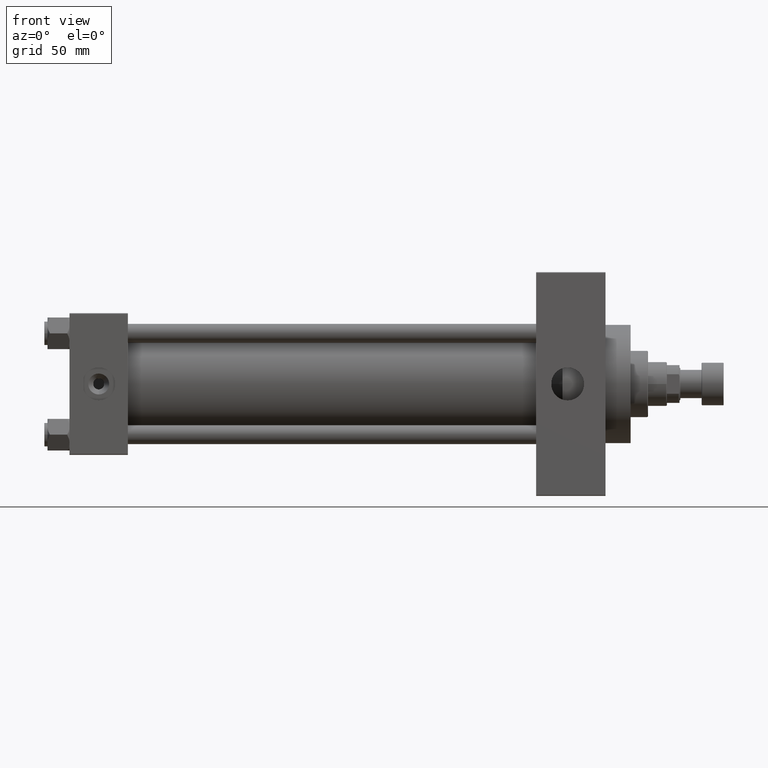
[diagram: clean part render]
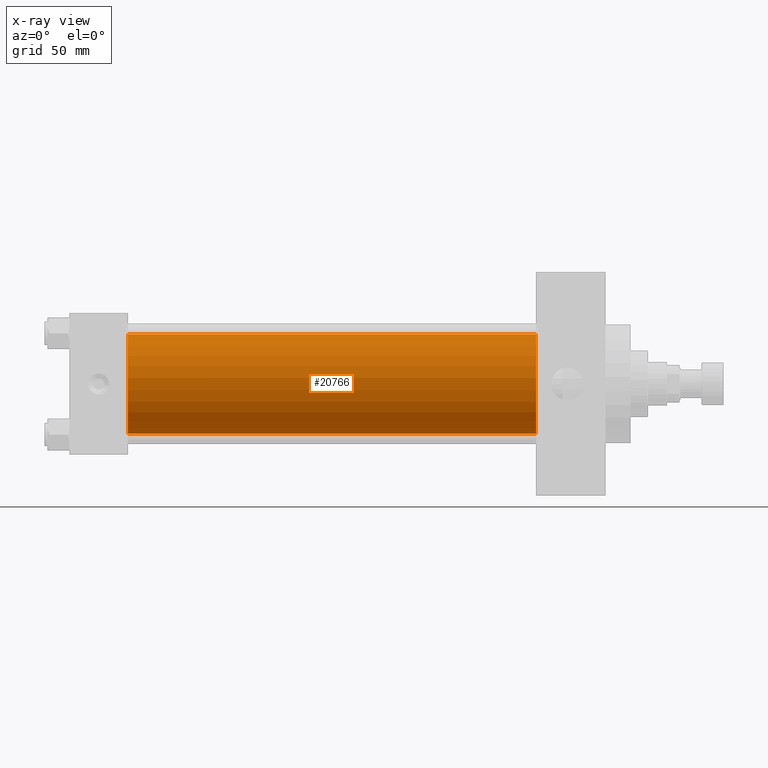
[diagram: x-ray — body ghosted, one internal face saturated and labeled with its STEP entity id]
A machine part, front view, then the same camera in x-ray: the body is ghosted and one INTERNAL B-rep face — a face not visible from any outside direction — is saturated and labeled: STEP entity #20766.
In plain terms, the highlighted cylindrical surface (partial cylindrical patch) has radius 31.5 mm, axis along (-1, -0, -0).
Its self-contained STEP definition (entity closure, byte-faithful):
#1470 = EDGE_CURVE ( 'NONE', #7894, #39975, #28945, .T. ) ;
#1936 = CIRCLE ( 'NONE', #19505, 31.50000000000000000 ) ;
#3213 = DIRECTION ( 'NONE',  ( -1.000000000000000000, -0.000000000000000000, -0.000000000000000000 ) ) ;
#4629 = DIRECTION ( 'NONE',  ( -1.000000000000000000, -0.000000000000000000, -0.000000000000000000 ) ) ;
#5032 = ORIENTED_EDGE ( 'NONE', *, *, #8000, .T. ) ;
#5422 = CARTESIAN_POINT ( 'NONE',  ( 296.0000000000000000, -2.602085213965210642E-15, 0.000000000000000000 ) ) ;
#6085 = CIRCLE ( 'NONE', #8498, 31.50000000000000000 ) ;
#7894 = VERTEX_POINT ( 'NONE', #10408 ) ;
#8000 = EDGE_CURVE ( 'NONE', #29130, #46811, #31107, .T. ) ;
#8498 = AXIS2_PLACEMENT_3D ( 'NONE', #47245, #43734, #32744 ) ;
#9178 = DIRECTION ( 'NONE',  ( 0.000000000000000000, 0.000000000000000000, -1.000000000000000000 ) ) ;
#10408 = CARTESIAN_POINT ( 'NONE',  ( 296.0000000000000000, -2.602085213965210642E-15, 31.50000000000000000 ) ) ;
#19505 = AXIS2_PLACEMENT_3D ( 'NONE', #5422, #24152, #9178 ) ;
#20766 = ADVANCED_FACE ( 'NONE', ( #21206 ), #36448, .F. ) ;
#21206 = FACE_OUTER_BOUND ( 'NONE', #26919, .T. ) ;
#22568 = ORIENTED_EDGE ( 'NONE', *, *, #1470, .F. ) ;
#23325 = AXIS2_PLACEMENT_3D ( 'NONE', #37430, #3213, #33198 ) ;
#24152 = DIRECTION ( 'NONE',  ( 1.000000000000000000, 0.000000000000000000, 0.000000000000000000 ) ) ;
#25364 = VECTOR ( 'NONE', #4629, 1000.000000000000000 ) ;
#25676 = DIRECTION ( 'NONE',  ( -1.000000000000000000, -0.000000000000000000, -0.000000000000000000 ) ) ;
#26919 = EDGE_LOOP ( 'NONE', ( #27753, #5032, #38023, #22568 ) ) ;
#27753 = ORIENTED_EDGE ( 'NONE', *, *, #32529, .T. ) ;
#28573 = CARTESIAN_POINT ( 'NONE',  ( 296.0000000000000000, 1.255552203348951850E-15, -31.50000000000000000 ) ) ;
#28945 = LINE ( 'NONE', #44676, #42530 ) ;
#29130 = VERTEX_POINT ( 'NONE', #28573 ) ;
#31107 = LINE ( 'NONE', #46356, #25364 ) ;
#32529 = EDGE_CURVE ( 'NONE', #7894, #29130, #1936, .T. ) ;
#32744 = DIRECTION ( 'NONE',  ( 0.000000000000000000, 0.000000000000000000, -1.000000000000000000 ) ) ;
#33198 = DIRECTION ( 'NONE',  ( 0.000000000000000000, 0.000000000000000000, 1.000000000000000000 ) ) ;
#34238 = CARTESIAN_POINT ( 'NONE',  ( 37.00000000000000000, -2.602085213965210642E-15, 31.50000000000000000 ) ) ;
#34956 = CARTESIAN_POINT ( 'NONE',  ( 37.00000000000000000, 1.255552203348951850E-15, -31.50000000000000000 ) ) ;
#36448 = CYLINDRICAL_SURFACE ( 'NONE', #23325, 31.50000000000000000 ) ;
#37430 = CARTESIAN_POINT ( 'NONE',  ( 296.0000000000000000, -2.602085213965210642E-15, 0.000000000000000000 ) ) ;
#38023 = ORIENTED_EDGE ( 'NONE', *, *, #38452, .F. ) ;
#38452 = EDGE_CURVE ( 'NONE', #39975, #46811, #6085, .T. ) ;
#39975 = VERTEX_POINT ( 'NONE', #34238 ) ;
#42530 = VECTOR ( 'NONE', #25676, 1000.000000000000000 ) ;
#43734 = DIRECTION ( 'NONE',  ( 1.000000000000000000, 0.000000000000000000, 0.000000000000000000 ) ) ;
#44676 = CARTESIAN_POINT ( 'NONE',  ( 296.0000000000000000, -2.602085213965210642E-15, 31.50000000000000000 ) ) ;
#46356 = CARTESIAN_POINT ( 'NONE',  ( 296.0000000000000000, 1.255552203348951850E-15, -31.50000000000000000 ) ) ;
#46811 = VERTEX_POINT ( 'NONE', #34956 ) ;
#47245 = CARTESIAN_POINT ( 'NONE',  ( 37.00000000000000000, -2.602085213965210642E-15, 0.000000000000000000 ) ) ;